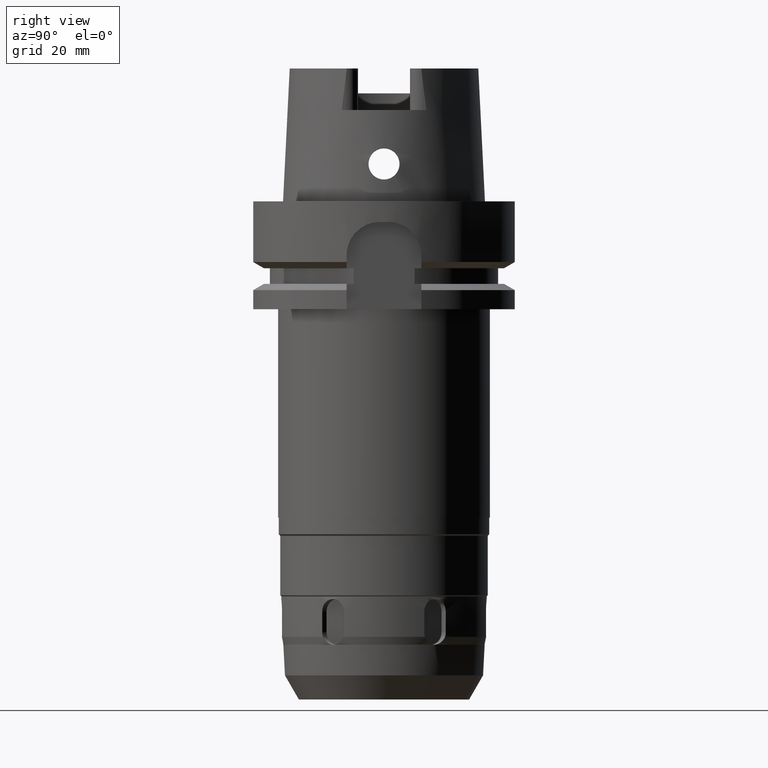
[diagram: clean part render]
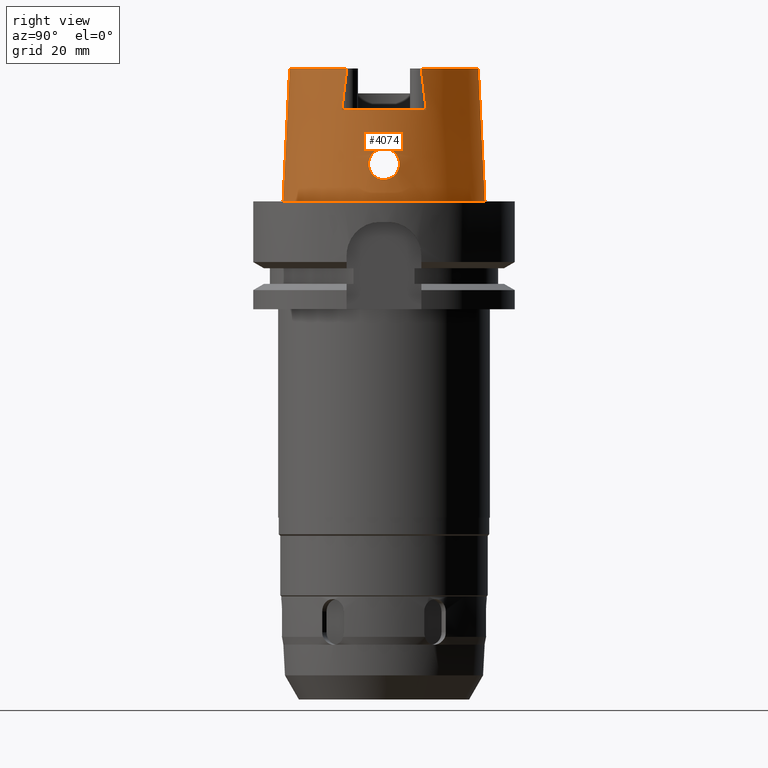
[diagram: same view with one face highlighted and labeled with its STEP entity id]
A machine part, right view. The second image highlights one B-rep face of the part: STEP entity #4074.
In plain terms, the highlighted conical surface has half-angle 2.862 deg.
Its self-contained STEP definition (entity closure, byte-faithful):
#138=CARTESIAN_POINT('',(0.E0,0.E0,3.2E1));
#139=DIRECTION('',(0.E0,0.E0,-1.E0));
#140=DIRECTION('',(9.185535885356E-1,-3.952964773285E-1,0.E0));
#141=AXIS2_PLACEMENT_3D('',#138,#139,#140);
#188=DIRECTION('',(0.E0,-4.993926899646E-2,-9.987522562738E-1));
#189=VECTOR('',#188,3.203997768114E1);
#190=CARTESIAN_POINT('',(0.E0,-2.271498175923E1,3.2E1));
#191=LINE('',#190,#189);
#253=CARTESIAN_POINT('',(2.086999605982E1,1.016757672559E1,2.2E1));
#254=CARTESIAN_POINT('',(2.086999605982E1,1.005830459451E1,2.295713692106E1));
#255=CARTESIAN_POINT('',(2.087000065519E1,9.837693900723E0,2.486635591541E1));
#256=CARTESIAN_POINT('',(2.087000361711E1,9.498301791816E0,2.771500378306E1));
#257=CARTESIAN_POINT('',(2.086999112329E1,9.267370213840E0,2.960362285878E1));
#258=CARTESIAN_POINT('',(2.086999112329E1,9.150019938507E0,3.054599643129E1));
#263=CARTESIAN_POINT('',(2.086999112329E1,9.150019938507E0,3.054599643129E1));
#264=CARTESIAN_POINT('',(2.086999112329E1,9.129930759336E0,3.070732124702E1));
#265=CARTESIAN_POINT('',(2.086958574404E1,9.090601513240E0,3.102963017544E1));
#266=CARTESIAN_POINT('',(2.086782854988E1,9.033596709166E0,3.151464210130E1));
#267=CARTESIAN_POINT('',(2.086599284936E1,8.997161997810E0,3.183814979310E1));
#268=CARTESIAN_POINT('',(2.086492401365E1,8.979173041315E0,3.2E1));
#273=DIRECTION('',(0.E0,4.993926899646E-2,-9.987522562738E-1));
#274=VECTOR('',#273,3.203997768114E1);
#275=CARTESIAN_POINT('',(0.E0,2.271498175923E1,3.2E1));
#276=LINE('',#275,#274);
#280=CARTESIAN_POINT('',(2.086492889908E1,-8.979147578632E0,3.2E1));
#281=CARTESIAN_POINT('',(2.086599795702E1,-8.997136344425E0,3.183814782322E1));
#282=CARTESIAN_POINT('',(2.086783043283E1,-9.033655383938E0,3.151458571316E1));
#283=CARTESIAN_POINT('',(2.086958081887E1,-9.090666018390E0,3.102985765237E1));
#284=CARTESIAN_POINT('',(2.087000452308E1,-9.129895372018E0,3.070684627211E1));
#285=CARTESIAN_POINT('',(2.087000462856E1,-9.149984562645E0,3.054552104080E1));
#290=CARTESIAN_POINT('',(2.087000462856E1,-9.149984562645E0,3.054552104080E1));
#291=CARTESIAN_POINT('',(2.087000462856E1,-9.267227664088E0,2.960401750857E1));
#292=CARTESIAN_POINT('',(2.087000024653E1,-9.498478388083E0,2.771533047292E1));
#293=CARTESIAN_POINT('',(2.086999219429E1,-9.837863084861E0,2.486682024027E1));
#294=CARTESIAN_POINT('',(2.087001804897E1,-1.005818307586E1,2.295730283881E1));
#295=CARTESIAN_POINT('',(2.087001804897E1,-1.016747560453E1,2.2E1));
#300=CARTESIAN_POINT('',(2.367751368058E1,-6.834353101066E-14,1.275E1));
#301=CARTESIAN_POINT('',(2.367751368058E1,-3.273385158332E-1,1.275E1));
#302=CARTESIAN_POINT('',(2.366793739617E1,-9.825578395490E-1,1.266377520162E1));
#303=CARTESIAN_POINT('',(2.362981187396E1,-1.900011941696E0,1.228336346711E1));
#304=CARTESIAN_POINT('',(2.358191464856E1,-2.688103610118E0,1.167637136123E1));
#305=CARTESIAN_POINT('',(2.354357325829E1,-3.288821818983E0,1.088964616116E1));
#306=CARTESIAN_POINT('',(2.353292970100E1,-3.664996245813E0,9.975433439343E0));
#307=CARTESIAN_POINT('',(2.356155056661E1,-3.792201675291E0,9.003320279069E0));
#308=CARTESIAN_POINT('',(2.363132646133E1,-3.666190663012E0,8.028242757784E0));
#309=CARTESIAN_POINT('',(2.373410816687E1,-3.290345154706E0,7.112700953515E0));
#310=CARTESIAN_POINT('',(2.385148627791E1,-2.687575013277E0,6.322334536508E0));
#311=CARTESIAN_POINT('',(2.395990467095E1,-1.893937666029E0,5.712776965834E0));
#312=CARTESIAN_POINT('',(2.403486396312E1,-9.758430360054E-1,5.334736581282E0));
#313=CARTESIAN_POINT('',(2.405252611747E1,-3.244503055273E-1,5.25E0));
#314=CARTESIAN_POINT('',(2.405252611747E1,0.E0,5.25E0));
#319=CARTESIAN_POINT('',(2.405252611747E1,0.E0,5.25E0));
#320=CARTESIAN_POINT('',(2.405252611747E1,3.241919777844E-1,5.25E0));
#321=CARTESIAN_POINT('',(2.403484405501E1,9.733368616168E-1,5.334871577067E0));
#322=CARTESIAN_POINT('',(2.396118719089E1,1.880400861350E0,5.706266428787E0));
#323=CARTESIAN_POINT('',(2.385421018901E1,2.670830414387E0,6.306103452248E0));
#324=CARTESIAN_POINT('',(2.373660317885E1,3.279839281649E0,7.093351889438E0));
#325=CARTESIAN_POINT('',(2.363225113575E1,3.664170079773E0,8.016597201605E0));
#326=CARTESIAN_POINT('',(2.356145067355E1,3.793008601994E0,9.002656706631E0));
#327=CARTESIAN_POINT('',(2.353285683294E1,3.663794086631E0,9.980785518005E0));
#328=CARTESIAN_POINT('',(2.354373581534E1,3.286378123232E0,1.089302997635E1));
#329=CARTESIAN_POINT('',(2.358182946346E1,2.689291444574E0,1.167450189497E1));
#330=CARTESIAN_POINT('',(2.362959251262E1,1.904101539267E0,1.228103240625E1));
#331=CARTESIAN_POINT('',(2.366788493431E1,9.851087791560E-1,1.266332345046E1));
#332=CARTESIAN_POINT('',(2.367751368058E1,3.283688743646E-1,1.275E1));
#333=CARTESIAN_POINT('',(2.367751368058E1,-6.834353101066E-14,1.275E1));
#368=CARTESIAN_POINT('',(0.E0,0.E0,2.2E1));
#369=DIRECTION('',(0.E0,0.E0,-1.E0));
#370=DIRECTION('',(8.989877876695E-1,4.379736951247E-1,0.E0));
#371=AXIS2_PLACEMENT_3D('',#368,#369,#370);
#3095=CARTESIAN_POINT('',(0.E0,0.E0,9.094947017729E-13));
#3096=DIRECTION('',(0.E0,0.E0,1.E0));
#3097=DIRECTION('',(0.E0,-1.E0,0.E0));
#3098=AXIS2_PLACEMENT_3D('',#3095,#3096,#3097);
#3343=CARTESIAN_POINT('',(0.E0,0.E0,3.2E1));
#3344=DIRECTION('',(0.E0,0.E0,-1.E0));
#3345=DIRECTION('',(0.E0,1.E0,0.E0));
#3346=AXIS2_PLACEMENT_3D('',#3343,#3344,#3345);
#3451=CARTESIAN_POINT('',(0.E0,2.271498175923E1,3.2E1));
#3452=VERTEX_POINT('',#3451);
#3453=CARTESIAN_POINT('',(2.086492800846E1,8.979152272005E0,3.2E1));
#3454=VERTEX_POINT('',#3453);
#3465=CARTESIAN_POINT('',(2.086492800846E1,-8.979152272005E0,3.2E1));
#3466=VERTEX_POINT('',#3465);
#3467=CARTESIAN_POINT('',(0.E0,-2.271498175923E1,3.2E1));
#3468=VERTEX_POINT('',#3467);
#3471=CARTESIAN_POINT('',(0.E0,-2.431503482329E1,6.075140390749E-13));
#3472=VERTEX_POINT('',#3471);
#3473=CARTESIAN_POINT('',(0.E0,2.431503482329E1,9.094947017729E-13));
#3474=VERTEX_POINT('',#3473);
#3477=CARTESIAN_POINT('',(2.087E1,1.016755860605E1,2.2E1));
#3478=CARTESIAN_POINT('',(2.087E1,-1.016755860605E1,2.2E1));
#3479=VERTEX_POINT('',#3477);
#3480=VERTEX_POINT('',#3478);
#3481=VERTEX_POINT('',#258);
#3482=VERTEX_POINT('',#285);
#3483=VERTEX_POINT('',#300);
#3484=VERTEX_POINT('',#314);
#4044=CARTESIAN_POINT('',(0.E0,0.E0,1.6E1));
#4045=DIRECTION('',(0.E0,0.E0,-1.E0));
#4046=DIRECTION('',(0.E0,-1.E0,0.E0));
#4047=AXIS2_PLACEMENT_3D('',#4044,#4045,#4046);
#4048=CONICAL_SURFACE('',#4047,2.351500829126E1,2.8625E0);
#4050=ORIENTED_EDGE('',*,*,#4049,.F.);
#4052=ORIENTED_EDGE('',*,*,#4051,.T.);
#4054=ORIENTED_EDGE('',*,*,#4053,.T.);
#4056=ORIENTED_EDGE('',*,*,#4055,.F.);
#4057=ORIENTED_EDGE('',*,*,#4016,.T.);
#4059=ORIENTED_EDGE('',*,*,#4058,.F.);
#4060=ORIENTED_EDGE('',*,*,#4012,.F.);
#4061=ORIENTED_EDGE('',*,*,#3980,.F.);
#4063=ORIENTED_EDGE('',*,*,#4062,.T.);
#4065=ORIENTED_EDGE('',*,*,#4064,.T.);
#4066=EDGE_LOOP('',(#4050,#4052,#4054,#4056,#4057,#4059,#4060,#4061,#4063,
#4065));
#4067=FACE_OUTER_BOUND('',#4066,.F.);
#4069=ORIENTED_EDGE('',*,*,#4068,.T.);
#4071=ORIENTED_EDGE('',*,*,#4070,.T.);
#4072=EDGE_LOOP('',(#4069,#4071));
#4073=FACE_BOUND('',#4072,.F.);
#142=CIRCLE('',#141,2.271498175923E1);
#259=B_SPLINE_CURVE_WITH_KNOTS('',3,(#253,#254,#255,#256,#257,#258),
.UNSPECIFIED.,.F.,.F.,(4,1,1,4),(0.E0,3.333333333333E-1,6.666666666667E-1,1.E0),
.UNSPECIFIED.);
#269=B_SPLINE_CURVE_WITH_KNOTS('',3,(#263,#264,#265,#266,#267,#268),
.UNSPECIFIED.,.F.,.F.,(4,1,1,4),(0.E0,3.333333333333E-1,6.666666666667E-1,1.E0),
.UNSPECIFIED.);
#286=B_SPLINE_CURVE_WITH_KNOTS('',3,(#280,#281,#282,#283,#284,#285),
.UNSPECIFIED.,.F.,.F.,(4,1,1,4),(0.E0,3.333333333333E-1,6.666666666667E-1,1.E0),
.UNSPECIFIED.);
#296=B_SPLINE_CURVE_WITH_KNOTS('',3,(#290,#291,#292,#293,#294,#295),
.UNSPECIFIED.,.F.,.F.,(4,1,1,4),(0.E0,3.333333333333E-1,6.666666666667E-1,1.E0),
.UNSPECIFIED.);
#315=B_SPLINE_CURVE_WITH_KNOTS('',3,(#300,#301,#302,#303,#304,#305,#306,#307,
#308,#309,#310,#311,#312,#313,#314),.UNSPECIFIED.,.F.,.F.,(4,1,1,1,1,1,1,1,1,1,
1,1,4),(0.E0,8.333333333333E-2,1.666666666667E-1,2.5E-1,3.333333333333E-1,
4.166666666667E-1,5.E-1,5.833333333333E-1,6.666666666667E-1,7.5E-1,
8.333333333333E-1,9.166666666667E-1,1.E0),.UNSPECIFIED.);
#334=B_SPLINE_CURVE_WITH_KNOTS('',3,(#319,#320,#321,#322,#323,#324,#325,#326,
#327,#328,#329,#330,#331,#332,#333),.UNSPECIFIED.,.F.,.F.,(4,1,1,1,1,1,1,1,1,1,
1,1,4),(0.E0,8.333333333333E-2,1.666666666667E-1,2.5E-1,3.333333333333E-1,
4.166666666667E-1,5.E-1,5.833333333333E-1,6.666666666667E-1,7.5E-1,
8.333333333333E-1,9.166666666667E-1,1.E0),.UNSPECIFIED.);
#372=CIRCLE('',#371,2.321499834175E1);
#3099=CIRCLE('',#3098,2.431503482329E1);
#3347=CIRCLE('',#3346,2.271498175923E1);
#3980=EDGE_CURVE('',#3466,#3468,#142,.T.);
#4012=EDGE_CURVE('',#3468,#3472,#191,.T.);
#4016=EDGE_CURVE('',#3452,#3474,#276,.T.);
#4049=EDGE_CURVE('',#3479,#3480,#372,.T.);
#4051=EDGE_CURVE('',#3479,#3481,#259,.T.);
#4053=EDGE_CURVE('',#3481,#3454,#269,.T.);
#4055=EDGE_CURVE('',#3452,#3454,#3347,.T.);
#4058=EDGE_CURVE('',#3472,#3474,#3099,.T.);
#4062=EDGE_CURVE('',#3466,#3482,#286,.T.);
#4064=EDGE_CURVE('',#3482,#3480,#296,.T.);
#4068=EDGE_CURVE('',#3483,#3484,#315,.T.);
#4070=EDGE_CURVE('',#3484,#3483,#334,.T.);
#4074=ADVANCED_FACE('',(#4067,#4073),#4048,.T.);